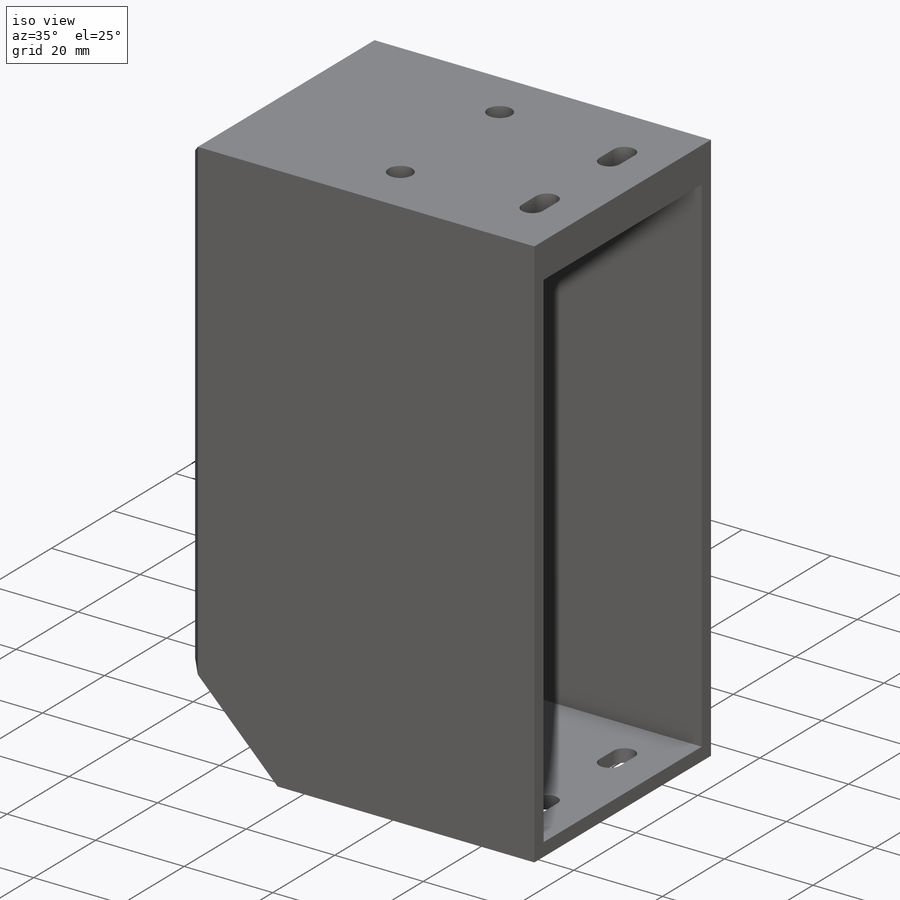
[diagram: iso view]
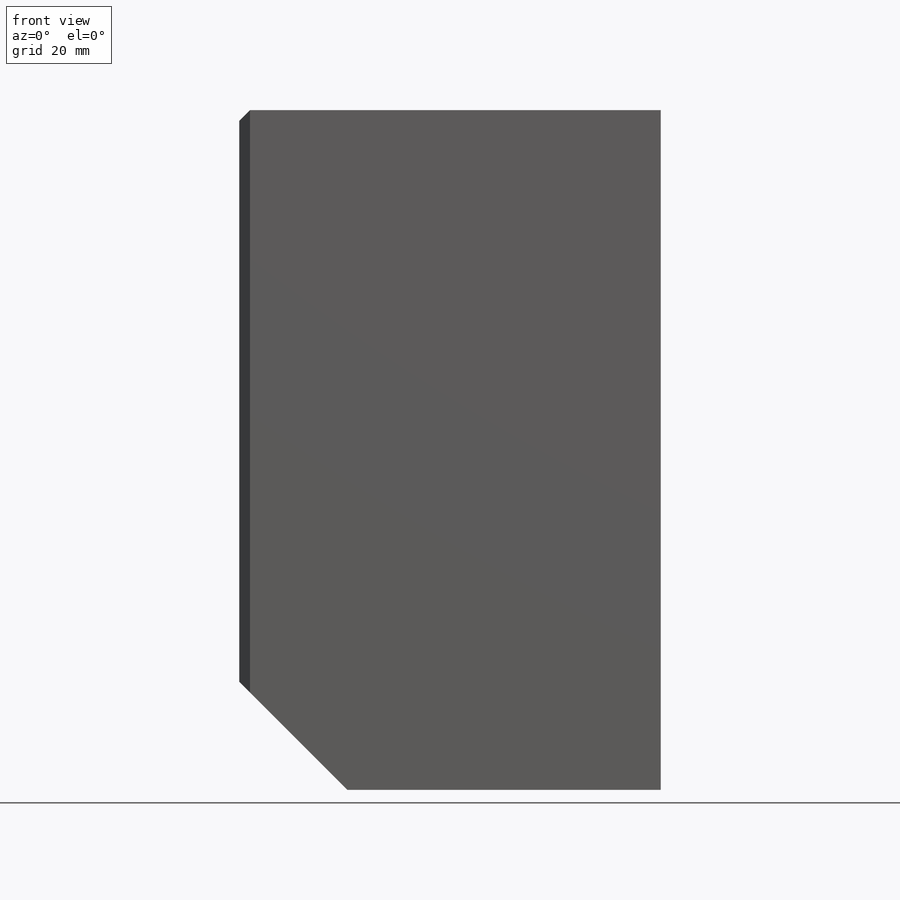
[diagram: front view]
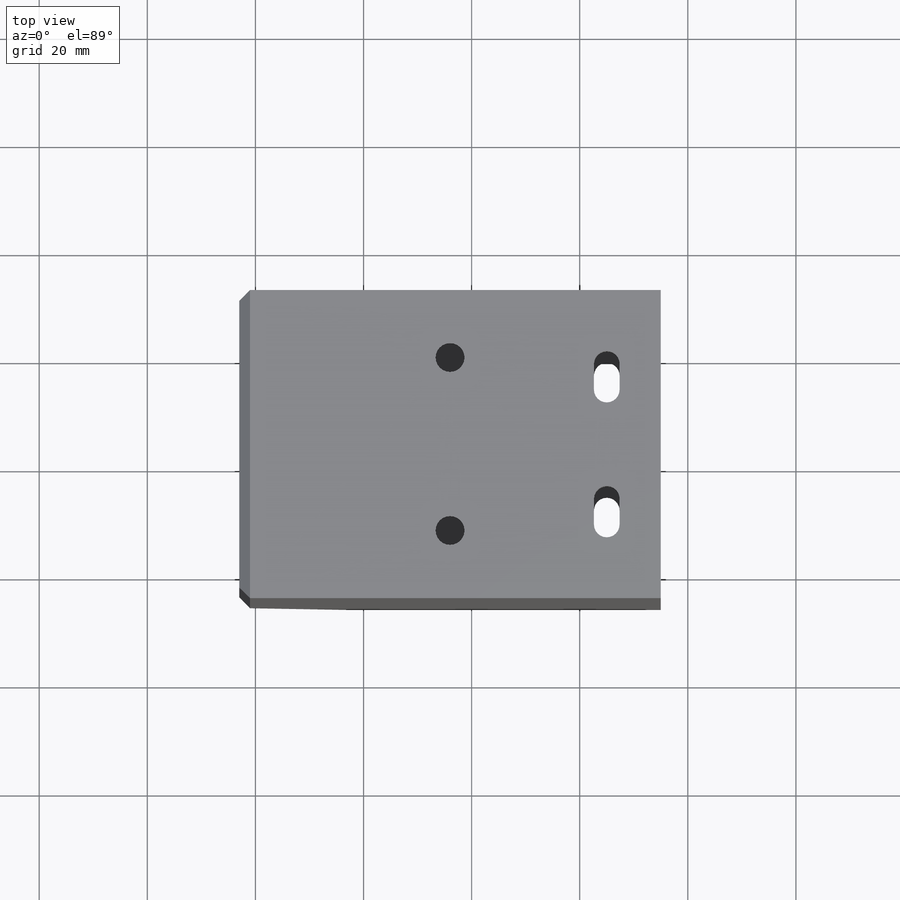
[diagram: top view]
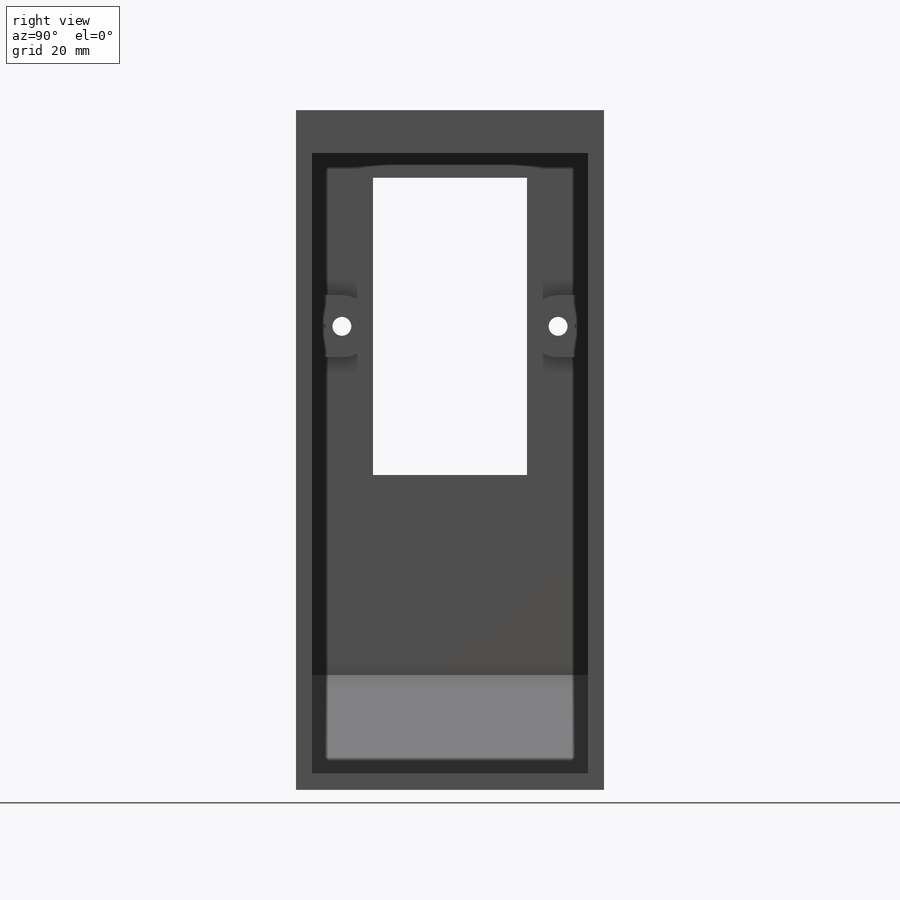
[diagram: right view]
SOLIDWORKS PART (.sldprt)
format: sldprt  version: not decoded by parser v0  size: 311,296 bytes
history: native  units: mm
features: sketch x10, extrude x5, cut_extrude x5, material x1, chamfer x1 (+16 scaffold rows collapsed)
feature tree (38):
  scaffold x16  (default folders/planes/origin — collapsed)
  material  "Material <not specified>"
  sketch  "Sketch2"  dims[D1=51.0mm D2=114.75mm D3=3.0mm]
  extrude  "Boss-Extrude1"  Depth=75mm
  sketch  "Sketch3"
  extrude  "Boss-Extrude2"  Depth=3mm
  sketch  "Sketch4"
  extrude  "Boss-Extrude3"  Depth=5mm
  sketch  "Sketch6"  dims[D1=5.35mm D2=12.5mm D3=18.5mm]
  cut_extrude  "Cut-Extrude2"  Depth=10mm
  sketch  "Sketch8"  dims[D1=20.0mm D2=20.0mm]
  cut_extrude  "Cut-Extrude3"  [1 undecoded]
  sketch  "Sketch9"  dims[D1=3.0mm]
  extrude  "Boss-Extrude4"  [1 undecoded]
  sketch  "Sketch15"  dims[D1=2.375mm D2=25.0mm D3=10.0mm D4=16.0mm D5=4.75mm]
  cut_extrude  "Cut-Extrude7"  [1 undecoded]
  sketch  "Sketch18"  dims[D2=3.5mm D1=40.0mm D3=40.0mm D4=55.0mm]
  cut_extrude  "Cut-Extrude8"  Depth=10mm
  sketch  "Sketch21"  dims[D1=5.85mm]
  extrude  "Boss-Extrude6"  Depth=5mm
  sketch  "Sketch22"  dims[D1=8.35mm]
  cut_extrude  "Cut-Extrude9"  Depth=5mm
  chamfer  "Chamfer1"  Distance=2mm Angle=45deg
decode coverage: 16 of 21 modeling features carry decoded parameters
note: 3 parameter values undecoded
summary: no parameter record found for 3 features
note: suppression state not decoded; provenance and decode notes live in map.json
